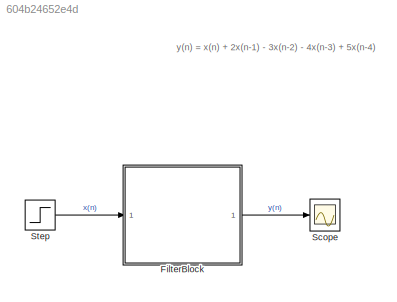
MODEL slx_604b24652e4d
KIND model
CONFIG AbsTol = auto
CONFIG EnableMultiTasking = off
CONFIG FixedStep = auto
CONFIG MaxStep = auto
CONFIG MinStep = auto
CONFIG RelTol = 1e-3
CONFIG SampleTimeConstraint = Unconstrained
CONFIG SolverName = VariableStepAuto
CONFIG StartTime = 0.0
CONFIG StopTime = 10
BLOCK [ModelReference] FilterBlock
  ModelNameDialog = FilterBlock
  ModelReferenceVersion = 1.3
  Ports = [1, 1]
BLOCK [Scope] Scope
  Floating = off
  NumInputPorts = 1
  Ports = [1]
  ScopeSpecificationString = Simulink.scopes.TimeScopeBlockCfg('CurrentConfiguration', extmgr.ConfigurationSet(extmgr.Configuration('Core','General UI',true),extmgr.Configuration('Core','Source UI',true),extmgr.Configuration('Sources','WiredSimulink',true),extmgr.Configuration('Visuals','Time Domain',true,'SerializedDisplays',{struct('MinYLimReal','-4.875','MaxYLimReal','3.875','YLabelReal','','MinYLimMag','0.00000','MaxYLimM...<+1345ch>
BLOCK [Step] Step
  SampleTime = 0
ANNOTATION (root): y(n) = x(n) + 2x(n-1) - 3x(n-2) - 4x(n-3) + 5x(n-4)
LINE FilterBlock:1 -> Scope:1
LINE Step:1 -> FilterBlock:1
